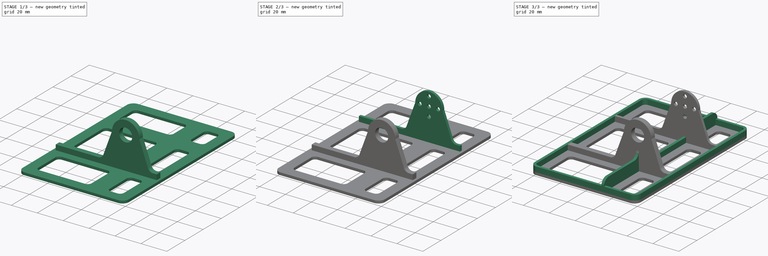
[diagram: build sequence overview — one tinted view per stage of 3, left to right]
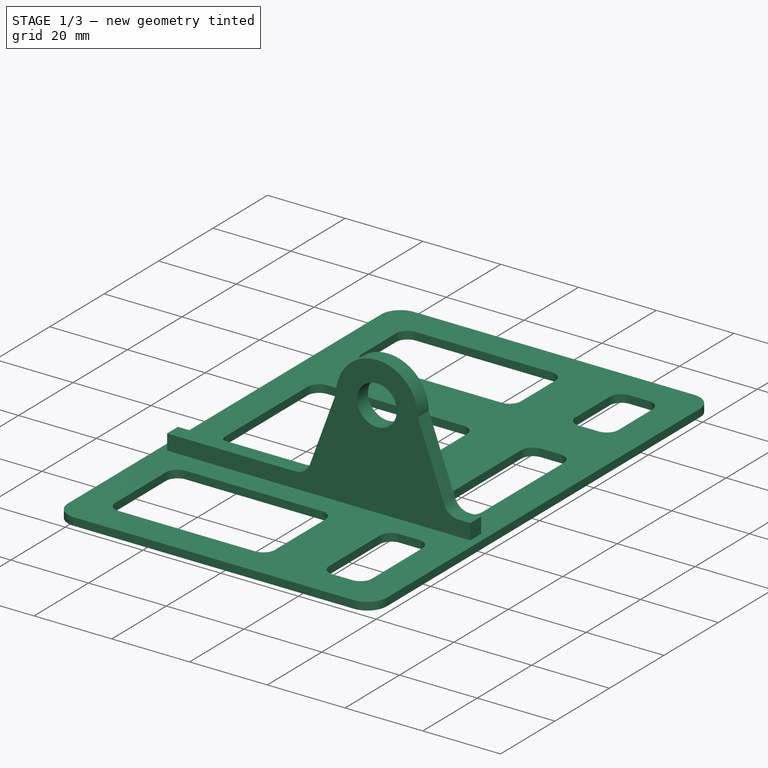
[diagram: stage 1 of 3 — iso view after this stage's code; geometry added in this stage tinted green]
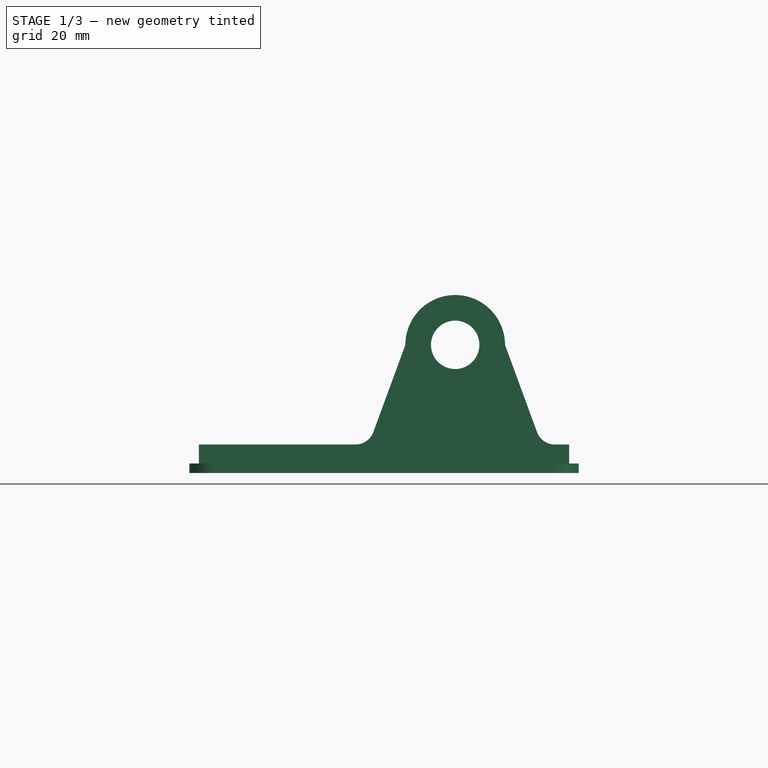
[diagram: stage 1 of 3 — front view after this stage's code; geometry added in this stage tinted green]
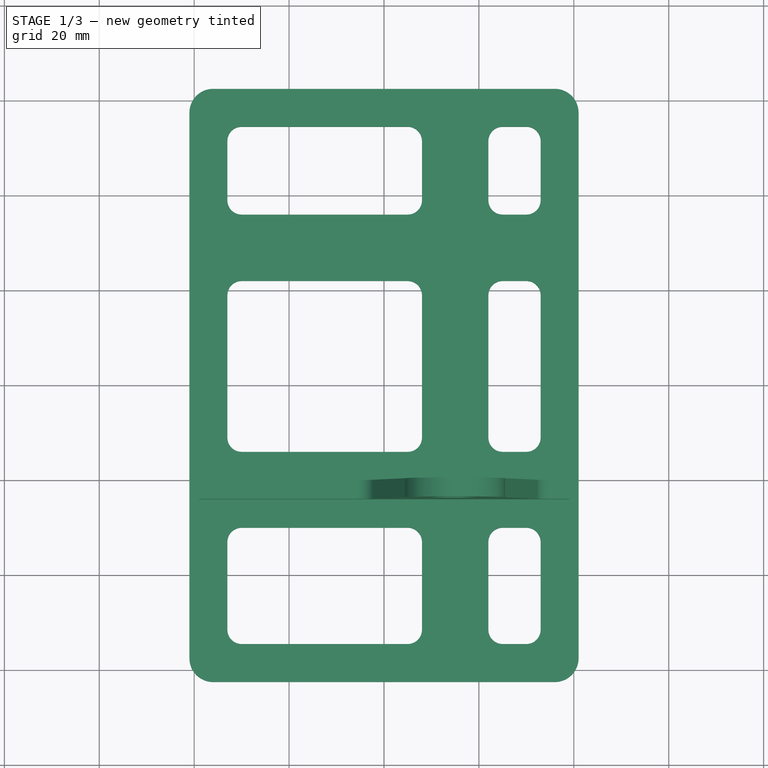
[diagram: stage 1 of 3 — top view after this stage's code; geometry added in this stage tinted green]
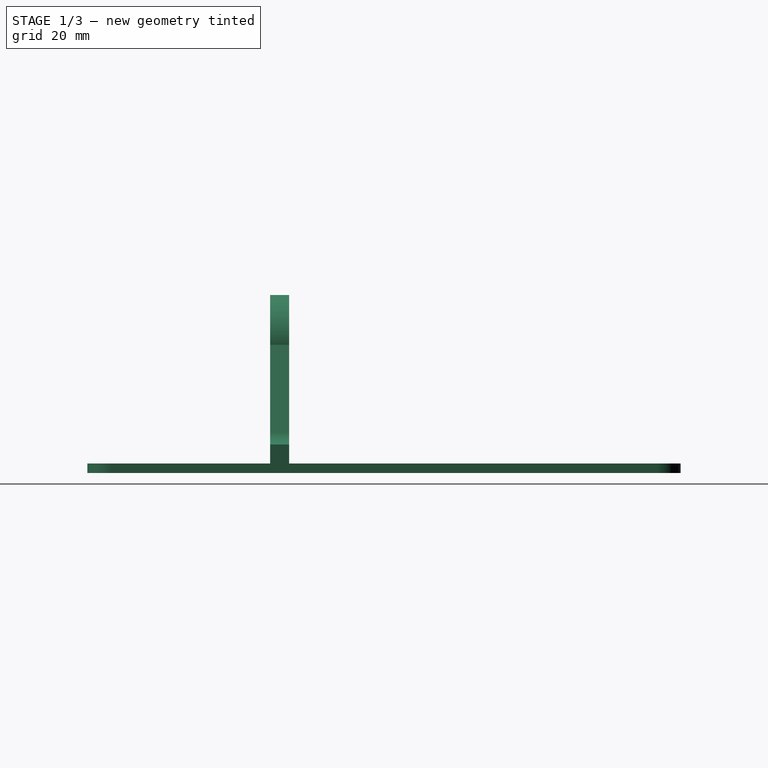
[diagram: stage 1 of 3 — right view after this stage's code; geometry added in this stage tinted green]
FCSTD DOCUMENT  (FreeCAD 0.21R33668 +26 (Git))
Label: 1R_foot_bearing2
License: All rights reserved
LicenseURL: http://en.wikipedia.org/wiki/All_rights_reserved
objects: Sketcher::SketchObject×5, PartDesign::Pad×5, PartDesign::Plane×3, Spreadsheet::Sheet×1, PartDesign::Body×1
note: 19 computed .brp shape members not serialized (recipe doc carries the construction recipe); baked Part::Feature solids carry a one-line shape summary decoded from their .brp

FEATURE [Spreadsheet::Sheet] Spreadsheet
  cells = A1='thickness; B1(thickness)=2; A2='bearing_thickness; B2(bearing_thickness)=4; A3='rim_height; B3(rim_height)=4; A4='foot_width; B4(foot_width)=82; A5='foot_length; B5(foot_length)=125; A6='foot_diameter; B6(foot_diameter)=5; A7='foot_whole_middle_length; B7(foot_whole_middle_length)=40; A8='foot_whole_back_length; B8(foot_whole_front_length)=23; A9='foot_whole_front_length; B9(foot_whole_back_length)=13; A10='foot_side_distance; B10(foot_side_distance)=6; A11='foot_frontback_distance; B11(foot_frontback_distance)=6; A13='tarsus_radius; B13(tarsus_radius)=10; A14='tarsus_width; B14(tarsus_width)=35; A15='tarsus_height; B15(tarsus_height)=35; A16='tarsus_length; B16(tarsus_length)=49; A17='tarsus_x_pos; B17(tarsus_x_pos)=7.5; A18='tarsus_front_y_pos; B18(tarsus_front_y_pos)=30; C18='c; D18==-0.5 + B1 + B16 / 2; A19='tarsus_back_y_pos; B19(tarsus_back_y_pos)=-20; C19='c; D19==-(B16 / 2) + 0.5; A21='screw_x_from_inner; B21(screw_x_from_inner)=26; C21='original; D21=33.5; E21='minus 2,5 for straight legs; F21='minus 5mm for distance between feet; A22='screw_distance; B22(screw_distance)=7; A23='screw_center_height; B23(screw_center_height)=25; A24='screw_dia; B24(screw_dia)=3; A25='axis_dia; B25(axis_dia)=7; A26='axis_dia_bearing; B26(axis_dia_bearing)=10.2; A28='hole_radius; B28(hole_radius)=3; A29='servo_disc_edge; B29(servo_disc_edge)=10; A30='servo_center_dist; B30(servo_center_dist)==sqrt(B29 * B29 * 2)
FEATURE [Sketcher::SketchObject] Sketch
  FullyConstrained = true
  MapMode = 5
  Support = -> [XY_Plane]
  expr: Constraints[153] = Spreadsheet.hole_radius
  expr: Constraints[156] = Spreadsheet.thickness + Spreadsheet.foot_side_distance
  expr: Constraints[157] = Spreadsheet.thickness + Spreadsheet.foot_side_distance
  expr: Constraints[158] = Spreadsheet.thickness + Spreadsheet.foot_side_distance
  expr: Constraints[159] = Spreadsheet.thickness + 2 * Spreadsheet.foot_frontback_distance
  expr: Constraints[160] = Spreadsheet.thickness + Spreadsheet.foot_side_distance
  expr: Constraints[162] = 2 * Spreadsheet.thickness + 2 * Spreadsheet.foot_frontback_distance
  expr: Constraints[163] = Spreadsheet.thickness + 2 * Spreadsheet.foot_frontback_distance
  expr: Constraints[164] = -Spreadsheet.tarsus_back_y_pos + Spreadsheet.foot_frontback_distance + 2 * Spreadsheet.thickness
  expr: Constraints[165] = Spreadsheet.tarsus_front_y_pos + Spreadsheet.foot_frontback_distance
  expr: Constraints[168] = Spreadsheet.screw_x_from_inner
  expr: Constraints[19] = Spreadsheet.foot_width
  expr: Constraints[20] = Spreadsheet.foot_length
  expr: Constraints[21] = Spreadsheet.foot_diameter
  sketch-geometry (72):
    g0: ArcOfCircle CenterX=-36 CenterY=57.5 CenterZ=0 NormalX=0 NormalY=0 NormalZ=1 AngleXU=0 Radius=5 StartAngle=1.5708 EndAngle=3.14159
    g1: LineSegment StartX=-36 StartY=62.5 StartZ=0 EndX=36 EndY=62.5 EndZ=0
    g2: ArcOfCircle CenterX=36 CenterY=57.5 CenterZ=0 NormalX=0 NormalY=0 NormalZ=1 AngleXU=0 Radius=5 StartAngle=0 EndAngle=1.5708
    g3: LineSegment StartX=41 StartY=57.5 StartZ=0 EndX=41 EndY=-57.5 EndZ=0
    g4: ArcOfCircle CenterX=36 CenterY=-57.5 CenterZ=0 NormalX=0 NormalY=0 NormalZ=1 AngleXU=0 Radius=5 StartAngle=4.71239 EndAngle=6.28319
    g5: LineSegment StartX=36 StartY=-62.5 StartZ=0 EndX=-36 EndY=-62.5 EndZ=0
    g6: ArcOfCircle CenterX=-36 CenterY=-57.5 CenterZ=0 NormalX=0 NormalY=0 NormalZ=1 AngleXU=0 Radius=5 StartAngle=3.14159 EndAngle=4.71239
    g7: LineSegment StartX=-41 StartY=-57.5 StartZ=0 EndX=-41 EndY=57.5 EndZ=0
    g8: GeomPoint X=-41 Y=62.5 Z=0
    g9: GeomPoint X=41 Y=-62.5 Z=0
    g10: ArcOfCircle CenterX=-30 CenterY=51.5 CenterZ=0 NormalX=0 NormalY=0 NormalZ=1 AngleXU=0 Radius=3 StartAngle=1.5708 EndAngle=3.14159
    g11: LineSegment StartX=-30 StartY=54.5 StartZ=0 EndX=5 EndY=54.5 EndZ=0
    g12: ArcOfCircle CenterX=5 CenterY=51.5 CenterZ=0 NormalX=0 NormalY=0 NormalZ=1 AngleXU=0 Radius=3 StartAngle=1.3e-15 EndAngle=1.5708
    g13: LineSegment StartX=8 StartY=51.5 StartZ=0 EndX=8 EndY=39 EndZ=0
    g14: ArcOfCircle CenterX=5 CenterY=39 CenterZ=0 NormalX=0 NormalY=0 NormalZ=1 AngleXU=0 Radius=3 StartAngle=4.71239 EndAngle=6.28319
    g15: LineSegment StartX=5 StartY=36 StartZ=0 EndX=-30 EndY=36 EndZ=0
    g16: ArcOfCircle CenterX=-30 CenterY=39 CenterZ=0 NormalX=0 NormalY=0 NormalZ=1 AngleXU=0 Radius=3 StartAngle=3.14159 EndAngle=4.71239
    g17: LineSegment StartX=-33 StartY=39 StartZ=0 EndX=-33 EndY=51.5 EndZ=0
    g18: GeomPoint X=-33 Y=54.5 Z=0
    g19: GeomPoint X=8 Y=36 Z=0
    g20: ArcOfCircle CenterX=25 CenterY=51.5 CenterZ=0 NormalX=0 NormalY=0 NormalZ=1 AngleXU=0 Radius=3 StartAngle=1.5708 EndAngle=3.14159
    g21: LineSegment StartX=25 StartY=54.5 StartZ=0 EndX=30 EndY=54.5 EndZ=0
    g22: ArcOfCircle CenterX=30 CenterY=51.5 CenterZ=0 NormalX=0 NormalY=0 NormalZ=1 AngleXU=0 Radius=3 StartAngle=0 EndAngle=1.5708
    g23: LineSegment StartX=33 StartY=51.5 StartZ=0 EndX=33 EndY=39 EndZ=0
    g24: ArcOfCircle CenterX=30 CenterY=39 CenterZ=0 NormalX=0 NormalY=0 NormalZ=1 AngleXU=0 Radius=3 StartAngle=4.71239 EndAngle=6.28319
    g25: LineSegment StartX=30 StartY=36 StartZ=0 EndX=25 EndY=36 EndZ=0
    g26: ArcOfCircle CenterX=25 CenterY=39 CenterZ=0 NormalX=0 NormalY=0 NormalZ=1 AngleXU=0 Radius=3 StartAngle=3.14159 EndAngle=4.71239
    g27: LineSegment StartX=22 StartY=39 StartZ=0 EndX=22 EndY=51.5 EndZ=0
    g28: GeomPoint X=22 Y=54.5 Z=0
    g29: GeomPoint X=33 Y=36 Z=0
    g30: ArcOfCircle CenterX=-30 CenterY=19 CenterZ=0 NormalX=0 NormalY=0 NormalZ=1 AngleXU=0 Radius=3 StartAngle=1.5708 EndAngle=3.14159
    g31: LineSegment StartX=-30 StartY=22 StartZ=0 EndX=5 EndY=22 EndZ=0
    g32: ArcOfCircle CenterX=5 CenterY=19 CenterZ=0 NormalX=0 NormalY=0 NormalZ=1 AngleXU=0 Radius=3 StartAngle=2e-16 EndAngle=1.5708
    g33: LineSegment StartX=8 StartY=19 StartZ=0 EndX=8 EndY=-11 EndZ=0
    g34: ArcOfCircle CenterX=5 CenterY=-11 CenterZ=0 NormalX=0 NormalY=0 NormalZ=1 AngleXU=0 Radius=3 StartAngle=4.71239 EndAngle=6.28319
    g35: LineSegment StartX=5 StartY=-14 StartZ=0 EndX=-30 EndY=-14 EndZ=0
    g36: ArcOfCircle CenterX=-30 CenterY=-11 CenterZ=0 NormalX=0 NormalY=0 NormalZ=1 AngleXU=0 Radius=3 StartAngle=3.14159 EndAngle=4.71239
    g37: LineSegment StartX=-33 StartY=-11 StartZ=0 EndX=-33 EndY=19 EndZ=0
    g38: GeomPoint X=-33 Y=22 Z=0
    g39: GeomPoint X=8 Y=-14 Z=0
    g40: ArcOfCircle CenterX=25 CenterY=19 CenterZ=0 NormalX=0 NormalY=0 NormalZ=1 AngleXU=0 Radius=3 StartAngle=1.5708 EndAngle=3.14159
    g41: LineSegment StartX=25 StartY=22 StartZ=0 EndX=30 EndY=22 EndZ=0
    g42: ArcOfCircle CenterX=30 CenterY=19 CenterZ=0 NormalX=0 NormalY=0 NormalZ=1 AngleXU=0 Radius=3 StartAngle=7e-16 EndAngle=1.5708
    g43: LineSegment StartX=33 StartY=19 StartZ=0 EndX=33 EndY=-11 EndZ=0
    g44: ArcOfCircle CenterX=30 CenterY=-11 CenterZ=0 NormalX=0 NormalY=0 NormalZ=1 AngleXU=0 Radius=3 StartAngle=4.71239 EndAngle=6.28319
    g45: LineSegment StartX=30 StartY=-14 StartZ=0 EndX=25 EndY=-14 EndZ=0
    g46: ArcOfCircle CenterX=25 CenterY=-11 CenterZ=0 NormalX=0 NormalY=0 NormalZ=1 AngleXU=0 Radius=3 StartAngle=3.14159 EndAngle=4.71239
    g47: LineSegment StartX=22 StartY=-11 StartZ=0 EndX=22 EndY=19 EndZ=0
    g48: GeomPoint X=22 Y=22 Z=0
    g49: GeomPoint X=33 Y=-14 Z=0
    g50: ArcOfCircle CenterX=-30 CenterY=-33 CenterZ=0 NormalX=0 NormalY=0 NormalZ=1 AngleXU=0 Radius=3 StartAngle=1.5708 EndAngle=3.14159
    g51: LineSegment StartX=-30 StartY=-30 StartZ=0 EndX=5 EndY=-30 EndZ=0
    g52: ArcOfCircle CenterX=5 CenterY=-33 CenterZ=0 NormalX=0 NormalY=0 NormalZ=1 AngleXU=0 Radius=3 StartAngle=-9e-16 EndAngle=1.5708
    g53: LineSegment StartX=8 StartY=-33 StartZ=0 EndX=8 EndY=-51.5 EndZ=0
    g54: ArcOfCircle CenterX=5 CenterY=-51.5 CenterZ=0 NormalX=0 NormalY=0 NormalZ=1 AngleXU=0 Radius=3 StartAngle=4.71239 EndAngle=6.28319
    g55: LineSegment StartX=5 StartY=-54.5 StartZ=0 EndX=-30 EndY=-54.5 EndZ=0
    g56: ArcOfCircle CenterX=-30 CenterY=-51.5 CenterZ=0 NormalX=0 NormalY=0 NormalZ=1 AngleXU=0 Radius=3 StartAngle=3.14159 EndAngle=4.71239
    g57: LineSegment StartX=-33 StartY=-51.5 StartZ=0 EndX=-33 EndY=-33 EndZ=0
    g58: GeomPoint X=-33 Y=-30 Z=0
    g59: GeomPoint X=8 Y=-54.5 Z=0
    g60: ArcOfCircle CenterX=25 CenterY=-33 CenterZ=0 NormalX=0 NormalY=0 NormalZ=1 AngleXU=0 Radius=3 StartAngle=1.5708 EndAngle=3.14159
    g61: LineSegment StartX=25 StartY=-30 StartZ=0 EndX=30 EndY=-30 EndZ=0
    g62: ArcOfCircle CenterX=30 CenterY=-33 CenterZ=0 NormalX=0 NormalY=0 NormalZ=1 AngleXU=0 Radius=3 StartAngle=-9e-16 EndAngle=1.5708
    g63: LineSegment StartX=33 StartY=-33 StartZ=0 EndX=33 EndY=-51.5 EndZ=0
    g64: ArcOfCircle CenterX=30 CenterY=-51.5 CenterZ=0 NormalX=0 NormalY=0 NormalZ=1 AngleXU=0 Radius=3 StartAngle=4.71239 EndAngle=6.28319
    g65: LineSegment StartX=30 StartY=-54.5 StartZ=0 EndX=25 EndY=-54.5 EndZ=0
    g66: ArcOfCircle CenterX=25 CenterY=-51.5 CenterZ=0 NormalX=0 NormalY=0 NormalZ=1 AngleXU=0 Radius=3 StartAngle=3.14159 EndAngle=4.71239
    g67: LineSegment StartX=22 StartY=-51.5 StartZ=0 EndX=22 EndY=-33 EndZ=0
    g68: GeomPoint X=22 Y=-30 Z=0
    g69: GeomPoint X=33 Y=-54.5 Z=0
    g70: GeomPoint X=15 Y=29 Z=0
    g71: GeomPoint X=15 Y=-22 Z=0
  constraints (169):
    c: Tangent(g0,g1) = 1.5708
    c: Tangent(g1,g2) = 1.5708
    c: Tangent(g2,g3) = 1.5708
    c: Tangent(g3,g4) = 1.5708
    c: Tangent(g4,g5) = 1.5708
    c: Tangent(g5,g6) = 1.5708
    c: Tangent(g6,g7) = 1.5708
    c: Tangent(g7,g0) = 1.5708
    c: Horizontal(g1)
    c: Horizontal(g5)
    c: Vertical(g3)
    c: Vertical(g7)
    c: Equal(g0,g2)
    c: Equal(g2,g4)
    c: Equal(g4,g6)
    c: PointOnObject(g8,g1)
    c: PointOnObject(g8,g7)
    c: PointOnObject(g9,g3)
    c: PointOnObject(g9,g5)
    c: DistanceX(g0,g2) = 82
    c: DistanceY(g4,g1) = 125
    c: DistanceX(g2,g2) = 5
    c: Symmetric(g2,g6,g-1)
    c: Tangent(g10,g11) = 1.5708
    c: Tangent(g11,g12) = 1.5708
    c: Tangent(g12,g13) = 1.5708
    c: Tangent(g13,g14) = 1.5708
    c: Tangent(g14,g15) = 1.5708
    c: Tangent(g15,g16) = 1.5708
    c: Tangent(g16,g17) = 1.5708
    c: Tangent(g17,g10) = 1.5708
    c: Horizontal(g11)
    c: Horizontal(g15)
    c: Vertical(g13)
    c: Vertical(g17)
    c: Equal(g10,g12)
    c: Equal(g12,g14)
    c: Equal(g14,g16)
    c: PointOnObject(g18,g11)
    c: PointOnObject(g18,g17)
    c: PointOnObject(g19,g13)
    c: PointOnObject(g19,g15)
    c: Tangent(g20,g21) = 1.5708
    c: Tangent(g21,g22) = 1.5708
    c: Tangent(g22,g23) = 1.5708
    c: Tangent(g23,g24) = 1.5708
    c: Tangent(g24,g25) = 1.5708
    c: Tangent(g25,g26) = 1.5708
    c: Tangent(g26,g27) = 1.5708
    c: Tangent(g27,g20) = 1.5708
    c: Horizontal(g21)
    c: Horizontal(g25)
    c: Vertical(g23)
    c: Vertical(g27)
    c: Equal(g20,g22)
    c: Equal(g22,g24)
    c: Equal(g24,g26)
    c: PointOnObject(g28,g21)
    c: PointOnObject(g28,g27)
    c: PointOnObject(g29,g23)
    c: PointOnObject(g29,g25)
    c: Tangent(g30,g31) = 1.5708
    c: Tangent(g31,g32) = 1.5708
    c: Tangent(g32,g33) = 1.5708
    c: Tangent(g33,g34) = 1.5708
    c: Tangent(g34,g35) = 1.5708
    c: Tangent(g35,g36) = 1.5708
    c: Tangent(g36,g37) = 1.5708
    c: Tangent(g37,g30) = 1.5708
    c: Horizontal(g31)
    c: Horizontal(g35)
    c: Vertical(g33)
    c: Vertical(g37)
    c: Equal(g30,g32)
    c: Equal(g32,g34)
    c: Equal(g34,g36)
    c: PointOnObject(g38,g31)
    c: PointOnObject(g38,g37)
    c: PointOnObject(g39,g33)
    c: PointOnObject(g39,g35)
    c: Tangent(g40,g41) = 1.5708
    c: Tangent(g41,g42) = 1.5708
    c: Tangent(g42,g43) = 1.5708
    c: Tangent(g43,g44) = 1.5708
    c: Tangent(g44,g45) = 1.5708
    c: Tangent(g45,g46) = 1.5708
    c: Tangent(g46,g47) = 1.5708
    c: Tangent(g47,g40) = 1.5708
    c: Horizontal(g41)
    c: Horizontal(g45)
    c: Vertical(g43)
    c: Vertical(g47)
    c: Equal(g40,g42)
    c: Equal(g42,g44)
    c: Equal(g44,g46)
    c: PointOnObject(g48,g41)
    c: PointOnObject(g48,g47)
    c: PointOnObject(g49,g43)
    c: PointOnObject(g49,g45)
    c: Tangent(g50,g51) = 1.5708
    c: Tangent(g51,g52) = 1.5708
    c: Tangent(g52,g53) = 1.5708
    c: Tangent(g53,g54) = 1.5708
    c: Tangent(g54,g55) = 1.5708
    c: Tangent(g55,g56) = 1.5708
    c: Tangent(g56,g57) = 1.5708
    c: Tangent(g57,g50) = 1.5708
    c: Horizontal(g51)
    c: Horizontal(g55)
    c: Vertical(g53)
    c: Vertical(g57)
    c: Equal(g50,g52)
    c: Equal(g52,g54)
    c: Equal(g54,g56)
    c: PointOnObject(g58,g51)
    c: PointOnObject(g58,g57)
    c: PointOnObject(g59,g53)
    c: PointOnObject(g59,g55)
    c: Tangent(g60,g61) = 1.5708
    c: Tangent(g61,g62) = 1.5708
    c: Tangent(g62,g63) = 1.5708
    c: Tangent(g63,g64) = 1.5708
    c: Tangent(g64,g65) = 1.5708
    c: Tangent(g65,g66) = 1.5708
    c: Tangent(g66,g67) = 1.5708
    c: Tangent(g67,g60) = 1.5708
    c: Horizontal(g61)
    c: Horizontal(g65)
    c: Vertical(g63)
    c: Vertical(g67)
    c: Equal(g60,g62)
    c: Equal(g62,g64)
    c: Equal(g64,g66)
    c: PointOnObject(g68,g61)
    c: PointOnObject(g68,g67)
    c: PointOnObject(g69,g63)
    c: PointOnObject(g69,g65)
    c: Vertical(g16,g30)
    c: Vertical(g36,g50)
    c: Vertical(g52,g33)
    c: Vertical(g32,g13)
    c: Horizontal(g31,g40)
    c: Horizontal(g34,g45)
    c: Horizontal(g51,g60)
    c: Horizontal(g54,g65)
    c: Horizontal(g60,g52)
    c: Horizontal(g40,g32)
    c: Horizontal(g20,g12)
    c: Horizontal(g14,g25)
    c: Horizontal(g13,g26)
    c: Vertical(g60,g46)
    c: Vertical(g42,g23)
    c: Vertical(g62,g43)
    c: Radius(g16) = 3
    c: Equal(g16,g30)
    c: Equal(g30,g50)
    c: DistanceX(g0,g10) = 8
    c: DistanceY(g10,g0) = 8
    c: DistanceX(g22,g2) = 8
    c: DistanceX(g12,g20) = 14
    c: DistanceY(g5,g55) = 8
    c: Vertical(g26,g40)
    c: DistanceY(g51,g34) = 16
    c: DistanceY(g31,g14) = 14
    c: DistanceY(g50,g-1) = 30
    c: DistanceY(g-1,g15) = 36
    c: Symmetric(g46,g52,g71)
    c: Symmetric(g26,g32,g70)
    c: DistanceX(g71,g3) = 26
FEATURE [PartDesign::Pad] Pad
  Direction = (0,0,1)
  Length = 2
  Length2 = 10
  Profile = -> Sketch
  ReferenceAxis = -> Sketch [N_Axis]
  Type = 0
  expr: Length = Spreadsheet.thickness
FEATURE [PartDesign::Plane] DatumPlane  label="frontDatumPlane"
  AttachmentOffset = pos=(0,0,-6) rot=(0,0,1;0rad)
  Length = 96.309
  MapMode = 5
  Placement = pos=(0,28,-1.3e-15) rot=(1,0,0;1.5708rad)
  ResizeMode = 0
  Support = -> [Pad]
  Width = 76.7325
  expr: .AttachmentOffset.Base.z = -Spreadsheet.foot_frontback_distance
FEATURE [PartDesign::Plane] DatumPlane001  label="backDatumPlane"
  AttachmentOffset = pos=(0,0,-6) rot=(0,0,1;0rad)
  Length = 96.309
  MapMode = 5
  Placement = pos=(0,-24,-1.3e-15) rot=(1,0,0;1.5708rad)
  ResizeMode = 0
  Support = -> [Pad]
  Width = 76.7325
  expr: .AttachmentOffset.Base.z = -Spreadsheet.foot_frontback_distance
FEATURE [Sketcher::SketchObject] Sketch001
  ExternalGeometry = -> [Pad]
  FullyConstrained = true
  MapMode = 5
  Placement = pos=(0,-24,-1.3e-15) rot=(1,0,0;1.5708rad)
  Support = -> [DatumPlane001]
  expr: Constraints[11] = Spreadsheet.screw_center_height
  expr: Constraints[12] = Spreadsheet.screw_distance + Spreadsheet.thickness + Spreadsheet.screw_dia / 2
  expr: Constraints[17] = Spreadsheet.thickness
  expr: Constraints[19] = Spreadsheet.thickness
  expr: Constraints[28] = Spreadsheet.rim_height
  expr: Constraints[29] = 2 * (Spreadsheet.screw_distance + Spreadsheet.thickness + Spreadsheet.screw_dia / 2)
  expr: Constraints[30] = Spreadsheet.rim_height
  expr: Constraints[32] = Spreadsheet.axis_dia_bearing
  sketch-geometry (13):
    g0: LineSegment StartX=39 StartY=2 StartZ=0 EndX=39 EndY=6 EndZ=0
    g1: LineSegment StartX=39 StartY=6 StartZ=0 EndX=36 EndY=6 EndZ=0
    g2: LineSegment StartX=32.2449 StartY=8.62185 StartZ=0 EndX=25.5 EndY=27 EndZ=0
    g3: LineSegment StartX=4.5 StartY=27 StartZ=0 EndX=-2.24491 EndY=8.62185 EndZ=0
    g4: LineSegment StartX=-6 StartY=6 StartZ=0 EndX=-39 EndY=6 EndZ=0
    g5: ArcOfCircle CenterX=15 CenterY=27 CenterZ=0 NormalX=0 NormalY=0 NormalZ=1 AngleXU=0 Radius=10.5 StartAngle=0 EndAngle=3.14159
    g6: GeomPoint X=15 Y=2 Z=0
    g7: GeomPoint X=15 Y=6 Z=0
    g8: LineSegment StartX=-39 StartY=6 StartZ=0 EndX=-39 EndY=2 EndZ=0
    g9: LineSegment StartX=-39 StartY=2 StartZ=0 EndX=39 EndY=2 EndZ=0
    g10: ArcOfCircle CenterX=-6 CenterY=10 CenterZ=0 NormalX=0 NormalY=0 NormalZ=1 AngleXU=0 Radius=4 StartAngle=4.71239 EndAngle=5.93144
    g11: ArcOfCircle CenterX=36 CenterY=10 CenterZ=0 NormalX=0 NormalY=0 NormalZ=1 AngleXU=0 Radius=4 StartAngle=3.49334 EndAngle=4.71239
    g12: Circle CenterX=15 CenterY=27 CenterZ=0 NormalX=0 NormalY=0 NormalZ=1 AngleXU=0 Radius=5.1
  constraints (33):
    c: Vertical(g0)
    c: Coincident(g1,g0)
    c: Horizontal(g1)
    c: Horizontal(g4)
    c: Coincident(g5,g3)
    c: Coincident(g5,g2)
    c: Horizontal(g3,g2)
    c: Horizontal(g5,g2)
    c: Symmetric(g-5,g-6,g6)
    c: Vertical(g6,g5)
    c: Horizontal(g4,g0)
    c: DistanceY(g6,g5) = 25
    c: DistanceX(g5,g2) = 10.5
    c: Vertical(g7,g5)
    c: Coincident(g8,g4)
    c: Vertical(g8)
    c: Horizontal(g8,g-4)
    c: DistanceX(g-4,g8) = 2
    c: Horizontal(g0,g-3)
    c: DistanceX(g0,g-3) = 2
    c: Coincident(g9,g8)
    c: Coincident(g9,g0)
    c: Tangent(g3,g10) = 1.5708
    c: Tangent(g4,g10) = 1.5708
    c: Tangent(g2,g11) = 1.5708
    c: Tangent(g1,g11) = 1.5708
    c: Horizontal(g11,g10)
    c: Symmetric(g1,g4,g7)
    c: DistanceY(g0,g0) = 4
    c: DistanceX(g7,g1) = 21
    c: DistanceY(g4,g10) = 4
    c: Coincident(g12,g5)
    c: Diameter(g12) = 10.2
FEATURE [PartDesign::Pad] Pad001
  BaseFeature = -> Pad
  Direction = (0,-1,2e-16)
  Length = 4
  Length2 = 10
  Profile = -> Sketch001
  ReferenceAxis = -> Sketch001 [N_Axis]
  Reversed = true
  Type = 0
  expr: Length = Spreadsheet.bearing_thickness
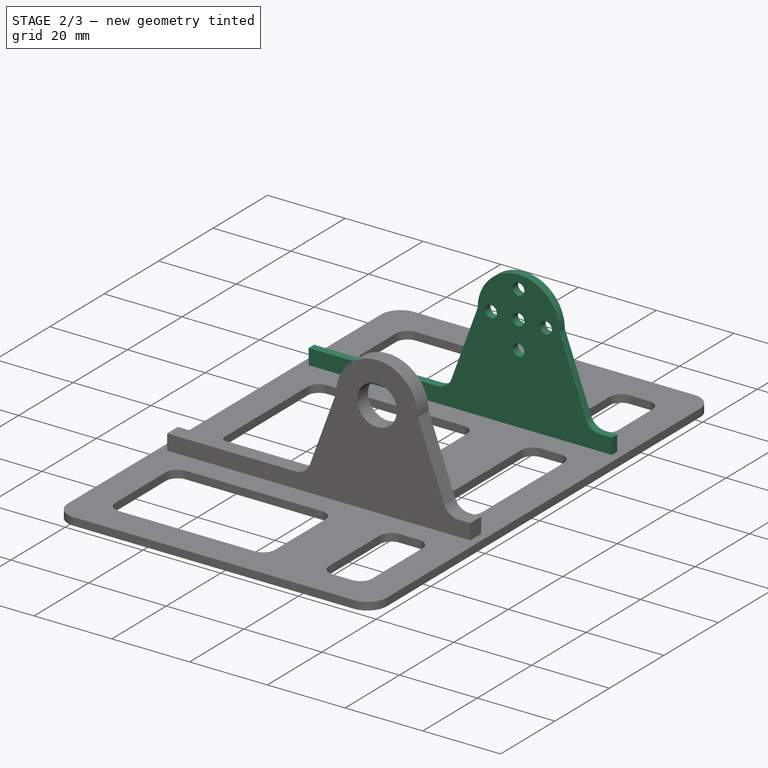
[diagram: stage 2 of 3 — iso view after this stage's code; geometry added in this stage tinted green]
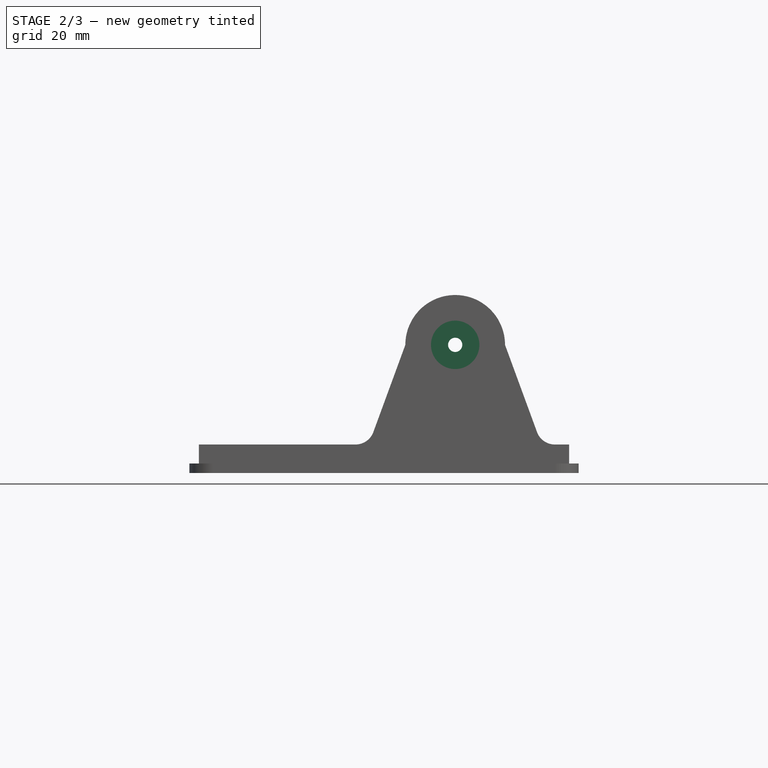
[diagram: stage 2 of 3 — front view after this stage's code; geometry added in this stage tinted green]
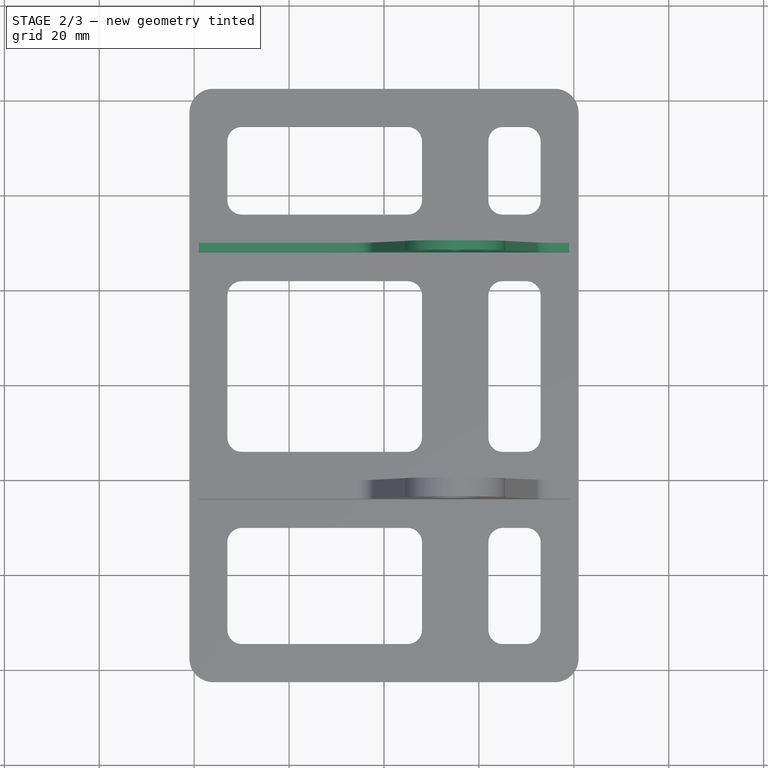
[diagram: stage 2 of 3 — top view after this stage's code; geometry added in this stage tinted green]
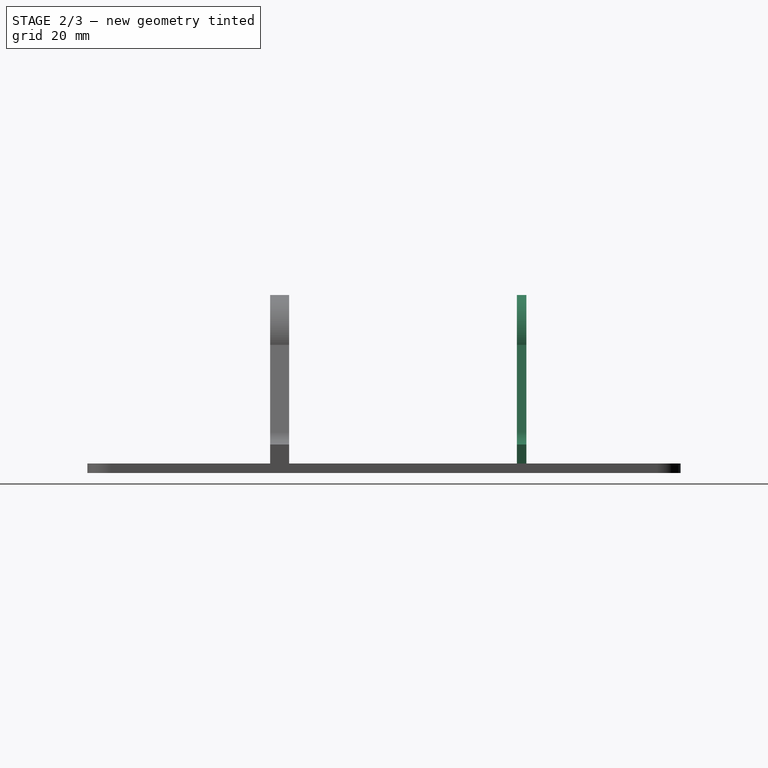
[diagram: stage 2 of 3 — right view after this stage's code; geometry added in this stage tinted green]
FEATURE [Sketcher::SketchObject] Sketch002
  ExternalGeometry = -> [Pad001]
  FullyConstrained = true
  MapMode = 5
  Placement = pos=(0,28,-1.3e-15) rot=(1,0,0;1.5708rad)
  Support = -> [DatumPlane]
  expr: Constraints[26] = Spreadsheet.servo_disc_edge
  expr: Constraints[27] = Spreadsheet.servo_center_dist / 2
  expr: Constraints[32] = Spreadsheet.screw_dia
  sketch-geometry (15):
    g0: LineSegment StartX=-39 StartY=2 StartZ=0 EndX=39 EndY=2 EndZ=0
    g1: LineSegment StartX=39 StartY=2 StartZ=0 EndX=39 EndY=6 EndZ=0
    g2: LineSegment StartX=-39 StartY=2 StartZ=0 EndX=-39 EndY=6 EndZ=0
    g3: LineSegment StartX=-39 StartY=6 StartZ=0 EndX=-6 EndY=6 EndZ=0
    g4: LineSegment StartX=-2.24491 StartY=8.62185 StartZ=0 EndX=4.5 EndY=27 EndZ=0
    g5: LineSegment StartX=25.5 StartY=27 StartZ=0 EndX=32.2449 EndY=8.62185 EndZ=0
    g6: ArcOfCircle CenterX=-6 CenterY=10 CenterZ=0 NormalX=0 NormalY=0 NormalZ=1 AngleXU=0 Radius=4 StartAngle=4.71239 EndAngle=5.93144
    g7: ArcOfCircle CenterX=36 CenterY=10 CenterZ=0 NormalX=0 NormalY=0 NormalZ=1 AngleXU=0 Radius=4 StartAngle=3.49334 EndAngle=4.71239
    g8: ArcOfCircle CenterX=15 CenterY=27 CenterZ=0 NormalX=0 NormalY=0 NormalZ=1 AngleXU=0 Radius=10.5 StartAngle=0 EndAngle=3.14159
    g9: Circle CenterX=7.92893 CenterY=27 CenterZ=0 NormalX=0 NormalY=0 NormalZ=1 AngleXU=0 Radius=1.5
    g10: Circle CenterX=15 CenterY=34.0711 CenterZ=0 NormalX=0 NormalY=0 NormalZ=1 AngleXU=0 Radius=1.5
    g11: Circle CenterX=15 CenterY=27 CenterZ=0 NormalX=0 NormalY=0 NormalZ=1 AngleXU=0 Radius=1.5
    g12: Circle CenterX=22.0711 CenterY=27 CenterZ=0 NormalX=0 NormalY=0 NormalZ=1 AngleXU=0 Radius=1.5
    g13: Circle CenterX=15 CenterY=19.9289 CenterZ=0 NormalX=0 NormalY=0 NormalZ=1 AngleXU=0 Radius=1.5
    g14: LineSegment StartX=36 StartY=6 StartZ=0 EndX=39 EndY=6 EndZ=0
  constraints (35):
    c: Coincident(g0,g-13)
    c: Coincident(g0,g-12)
    c: Coincident(g1,g0)
    c: Coincident(g1,g-12)
    c: Coincident(g2,g-14)
    c: Coincident(g3,g2)
    c: Coincident(g3,g-14)
    c: Coincident(g4,g-7)
    c: Coincident(g4,g-8)
    c: Coincident(g5,g-9)
    c: Coincident(g5,g-10)
    c: Coincident(g2,g0)
    c: Coincident(g6,g4)
    c: Coincident(g6,g3)
    c: Coincident(g7,g-11)
    c: Coincident(g7,g5)
    c: Coincident(g8,g5)
    c: Coincident(g8,g4)
    c: Horizontal(g-6,g6)
    c: Horizontal(g-10,g7)
    c: Coincident(g11,g8)
    c: Symmetric(g13,g10,g8)
    c: Symmetric(g9,g12,g8)
    c: Horizontal(g8,g-8)
    c: Horizontal(g9,g8)
    c: Vertical(g10,g8)
    c: Distance(g10,g12) = 10
    c: DistanceX(g8,g12) = 7.07107
    c: Equal(g13,g12)
    c: Equal(g13,g11)
    c: Equal(g13,g10)
    c: Equal(g13,g9)
    c: Diameter(g13) = 3
    c: Coincident(g14,g7)
    c: Coincident(g14,g1)
FEATURE [PartDesign::Plane] DatumPlane002  label="sideDatumPlane"
  AttachmentOffset = pos=(0,0,0) rot=(1,0,0;1.5708rad)
  Length = 80.0903
  MapMode = 11
  Placement = pos=(15,-24,26) rot=(0.707107,0,0.707107;3.14159rad)
  ResizeMode = 0
  Width = 142.667
FEATURE [PartDesign::Pad] Pad002
  BaseFeature = -> Pad001
  Direction = (0,-1,2e-16)
  Length = 2
  Length2 = 10
  Profile = -> Sketch002
  ReferenceAxis = -> Sketch002 [N_Axis]
  Reversed = true
  Type = 0
  expr: Length = Spreadsheet.thickness
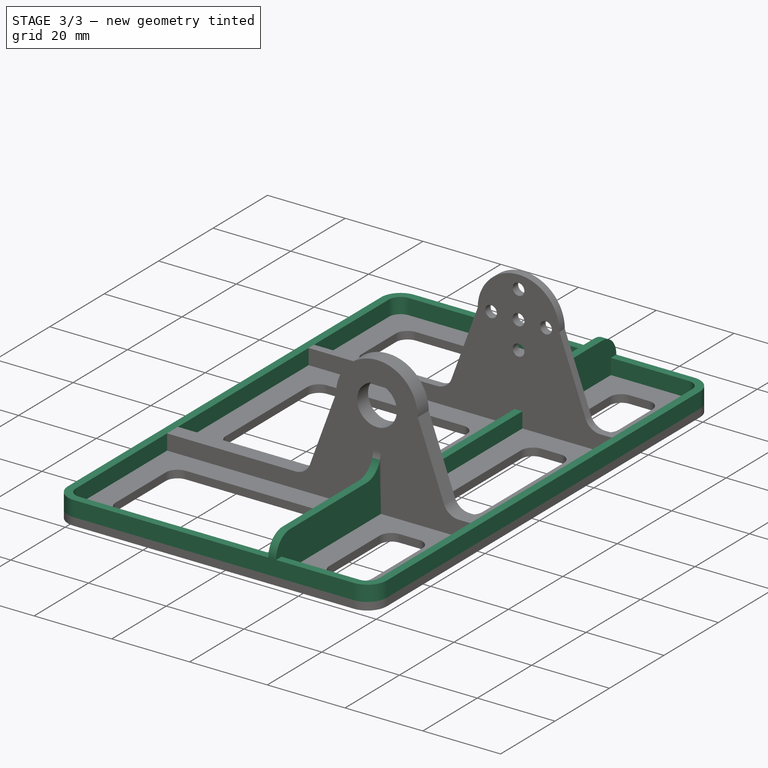
[diagram: stage 3 of 3 — iso view after this stage's code; geometry added in this stage tinted green]
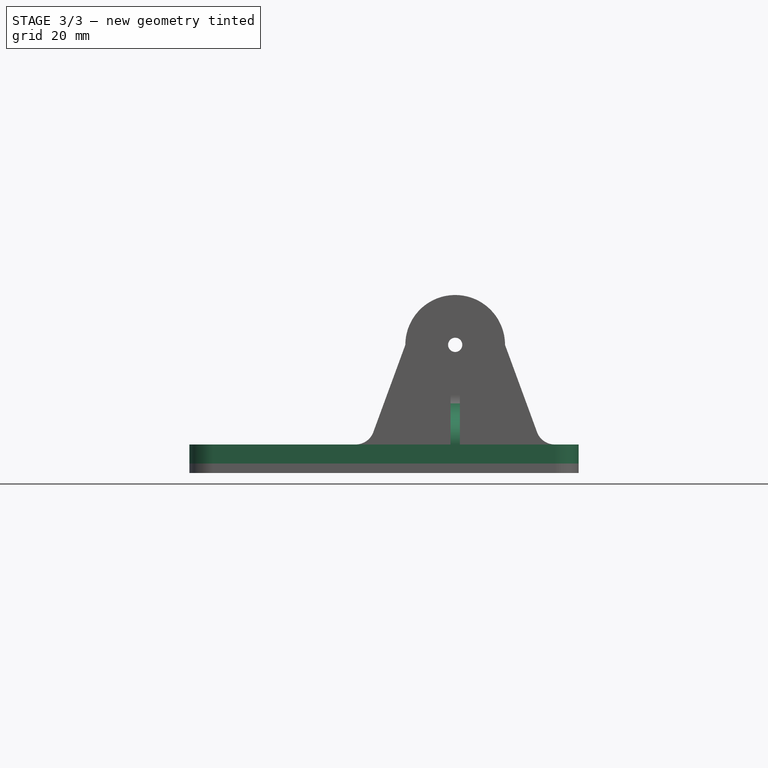
[diagram: stage 3 of 3 — front view after this stage's code; geometry added in this stage tinted green]
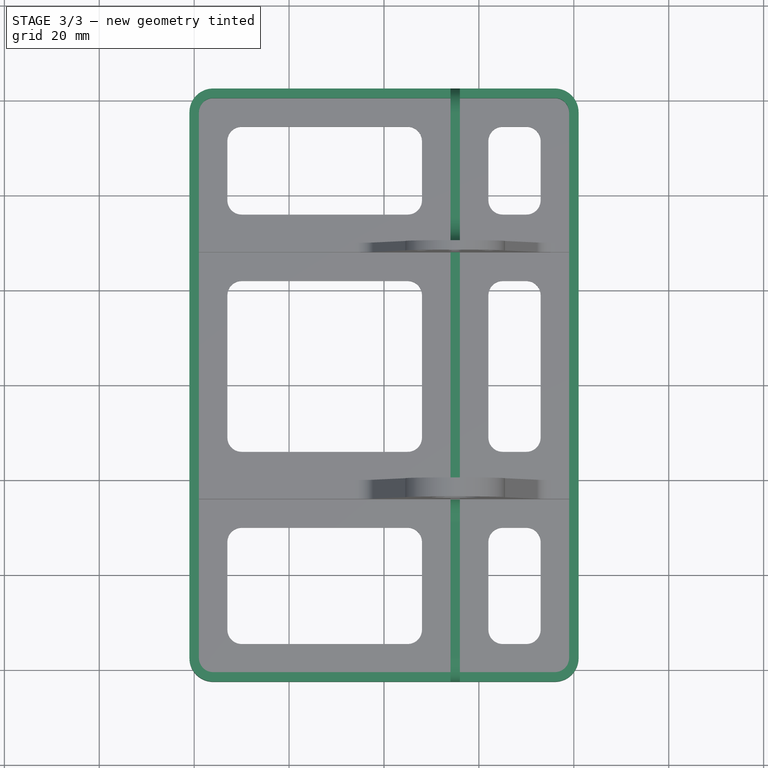
[diagram: stage 3 of 3 — top view after this stage's code; geometry added in this stage tinted green]
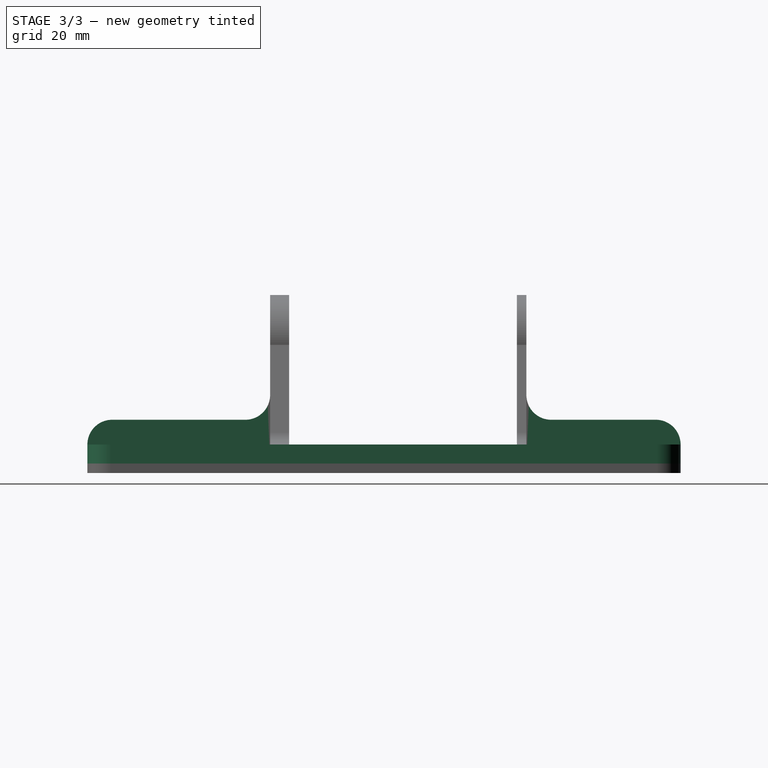
[diagram: stage 3 of 3 — right view after this stage's code; geometry added in this stage tinted green]
FEATURE [Sketcher::SketchObject] Sketch003
  ExternalGeometry = -> [Pad002]
  FullyConstrained = true
  MapMode = 5
  Placement = pos=(15,-24,26) rot=(0.707107,0,0.707107;3.14159rad)
  Support = -> [DatumPlane002]
  expr: Constraints[43] = Spreadsheet.rim_height
  expr: Constraints[4] = Spreadsheet.thickness
  sketch-geometry (16):
    g0: LineSegment StartX=-24 StartY=-54 StartZ=0 EndX=-24 EndY=-86.5 EndZ=0
    g1: LineSegment StartX=-24 StartY=-54 StartZ=0 EndX=-9.57107 EndY=-54 EndZ=0
    g2: LineSegment StartX=-24 StartY=38.5 StartZ=0 EndX=-24 EndY=0 EndZ=0
    g3: LineSegment StartX=-24 StartY=0 StartZ=0 EndX=-9.57107 EndY=0 EndZ=0
    g4: LineSegment StartX=-24 StartY=38.5 StartZ=0 EndX=-20 EndY=38.5 EndZ=0
    g5: ArcOfCircle CenterX=-20 CenterY=33.2855 CenterZ=0 NormalX=0 NormalY=0 NormalZ=1 AngleXU=0 Radius=5.21447 StartAngle=3e-16 EndAngle=1.5708
    g6: LineSegment StartX=-24 StartY=-86.5 StartZ=0 EndX=-20 EndY=-86.5 EndZ=0
    g7: ArcOfCircle CenterX=-20 CenterY=-81.2855 CenterZ=0 NormalX=0 NormalY=0 NormalZ=1 AngleXU=0 Radius=5.21447 StartAngle=4.71239 EndAngle=6.28319
    g8: LineSegment StartX=-24 StartY=-52 StartZ=0 EndX=-20 EndY=-52 EndZ=0
    g9: LineSegment StartX=-20 StartY=-52 StartZ=0 EndX=-20 EndY=-4 EndZ=0
    g10: LineSegment StartX=-20 StartY=-4 StartZ=0 EndX=-24 EndY=-4 EndZ=0
    g11: LineSegment StartX=-24 StartY=-4 StartZ=0 EndX=-24 EndY=-52 EndZ=0
    g12: ArcOfCircle CenterX=-9.57107 CenterY=5.21447 CenterZ=0 NormalX=0 NormalY=0 NormalZ=1 AngleXU=0 Radius=5.21447 StartAngle=3.14159 EndAngle=4.71239
    g13: LineSegment StartX=-14.7855 StartY=33.2855 StartZ=0 EndX=-14.7855 EndY=5.21447 EndZ=0
    g14: ArcOfCircle CenterX=-9.57107 CenterY=-59.2145 CenterZ=0 NormalX=0 NormalY=0 NormalZ=1 AngleXU=0 Radius=5.21447 StartAngle=1.5708 EndAngle=3.14159
    g15: LineSegment StartX=-14.7855 StartY=-59.2145 StartZ=0 EndX=-14.7855 EndY=-81.2855 EndZ=0
  constraints (47):
    c: Coincident(g0,g-12)
    c: Coincident(g1,g0)
    c: Horizontal(g1)
    c: Coincident(g0,g-11)
    c: DistanceX(g1,g-13) = 2
    c: Coincident(g2,g-3)
    c: Vertical(g2)
    c: Coincident(g3,g2)
    c: PointOnObject(g3,g-1)
    c: Horizontal(g3)
    c: Coincident(g4,g2)
    c: Horizontal(g4)
    c: Coincident(g5,g4)
    c: Vertical(g5,g4)
    c: Horizontal(g5,g5)
    c: Coincident(g6,g0)
    c: Horizontal(g6)
    c: Coincident(g7,g6)
    c: Horizontal(g7,g7)
    c: Vertical(g7,g6)
    c: Coincident(g8,g9)
    c: Coincident(g9,g10)
    c: Coincident(g10,g11)
    c: Coincident(g11,g8)
    c: Horizontal(g8)
    c: Horizontal(g10)
    c: Vertical(g9)
    c: Vertical(g11)
    c: Coincident(g8,g-8)
    c: Coincident(g9,g-14)
    c: Coincident(g12,g3)
    c: Coincident(g13,g5)
    c: Coincident(g13,g12)
    c: Vertical(g13)
    c: Vertical(g3,g12)
    c: Equal(g12,g5)
    c: Coincident(g14,g1)
    c: Coincident(g15,g7)
    c: Vertical(g15)
    c: Vertical(g14,g1)
    c: Horizontal(g14,g14)
    c: Coincident(g14,g15)
    c: Equal(g7,g14)
    c: DistanceX(g6,g6) = 4
    c: Vertical(g4,g6)
    c: Vertical(g1,g3)
    c: Horizontal(g12,g12)
FEATURE [PartDesign::Pad] Pad003
  BaseFeature = -> Pad002
  Direction = (1,-1e-16,2e-16)
  Length = 2
  Length2 = 10
  Midplane = true
  Profile = -> Sketch003
  ReferenceAxis = -> Sketch003 [N_Axis]
  Type = 0
  expr: Length = Spreadsheet.thickness
FEATURE [Sketcher::SketchObject] Sketch004
  ExternalGeometry = -> [Pad003]
  FullyConstrained = true
  MapMode = 5
  Placement = pos=(0,0,2) rot=(0,0,1;0rad)
  Support = -> [Pad003]
  sketch-geometry (24):
    g0: LineSegment StartX=-41 StartY=-57.5 StartZ=0 EndX=-41 EndY=57.5 EndZ=0
    g1: LineSegment StartX=-36 StartY=62.5 StartZ=0 EndX=14 EndY=62.5 EndZ=0
    g2: LineSegment StartX=16 StartY=62.5 StartZ=0 EndX=36 EndY=62.5 EndZ=0
    g3: LineSegment StartX=-36 StartY=-62.5 StartZ=0 EndX=14 EndY=-62.5 EndZ=0
    g4: LineSegment StartX=16 StartY=-62.5 StartZ=0 EndX=36 EndY=-62.5 EndZ=0
    g5: LineSegment StartX=41 StartY=-57.5 StartZ=0 EndX=41 EndY=57.5 EndZ=0
    g6: ArcOfCircle CenterX=36 CenterY=57.5 CenterZ=0 NormalX=0 NormalY=0 NormalZ=1 AngleXU=0 Radius=5 StartAngle=9e-16 EndAngle=1.5708
    g7: ArcOfCircle CenterX=-36 CenterY=57.5 CenterZ=0 NormalX=0 NormalY=0 NormalZ=1 AngleXU=0 Radius=5 StartAngle=1.5708 EndAngle=3.14159
    g8: ArcOfCircle CenterX=-36 CenterY=-57.5 CenterZ=0 NormalX=0 NormalY=0 NormalZ=1 AngleXU=0 Radius=5 StartAngle=3.14159 EndAngle=4.71239
    g9: ArcOfCircle CenterX=36 CenterY=-57.5 CenterZ=0 NormalX=0 NormalY=0 NormalZ=1 AngleXU=0 Radius=5 StartAngle=4.71239 EndAngle=6.28319
    g10: LineSegment StartX=39 StartY=57.5 StartZ=0 EndX=39 EndY=-57.5 EndZ=0
    g11: LineSegment StartX=16 StartY=-60.5 StartZ=0 EndX=36 EndY=-60.5 EndZ=0
    g12: ArcOfCircle CenterX=36 CenterY=-57.5 CenterZ=0 NormalX=0 NormalY=0 NormalZ=1 AngleXU=0 Radius=3 StartAngle=4.71239 EndAngle=6.28319
    g13: ArcOfCircle CenterX=36 CenterY=57.5 CenterZ=0 NormalX=0 NormalY=0 NormalZ=1 AngleXU=0 Radius=3 StartAngle=9e-16 EndAngle=1.5708
    g14: LineSegment StartX=36 StartY=60.5 StartZ=0 EndX=16 EndY=60.5 EndZ=0
    g15: LineSegment StartX=16 StartY=60.5 StartZ=0 EndX=16 EndY=62.5 EndZ=0
    g16: LineSegment StartX=16 StartY=-60.5 StartZ=0 EndX=16 EndY=-62.5 EndZ=0
    g17: LineSegment StartX=14 StartY=60.5 StartZ=0 EndX=-36 EndY=60.5 EndZ=0
    g18: LineSegment StartX=-39 StartY=57.5 StartZ=0 EndX=-39 EndY=-57.5 EndZ=0
    g19: LineSegment StartX=14 StartY=60.5 StartZ=0 EndX=14 EndY=62.5 EndZ=0
    g20: LineSegment StartX=14 StartY=-60.5 StartZ=0 EndX=-36 EndY=-60.5 EndZ=0
    g21: LineSegment StartX=14 StartY=-62.5 StartZ=0 EndX=14 EndY=-60.5 EndZ=0
    g22: ArcOfCircle CenterX=-36 CenterY=-57.5 CenterZ=0 NormalX=0 NormalY=0 NormalZ=1 AngleXU=0 Radius=3 StartAngle=3.14159 EndAngle=4.71239
    g23: ArcOfCircle CenterX=-36 CenterY=57.5 CenterZ=0 NormalX=0 NormalY=0 NormalZ=1 AngleXU=0 Radius=3 StartAngle=1.5708 EndAngle=3.14159
  constraints (67):
    c: Coincident(g0,g-12)
    c: Coincident(g0,g-8)
    c: Coincident(g1,g-7)
    c: Coincident(g1,g-6)
    c: Coincident(g2,g-3)
    c: Coincident(g2,g-4)
    c: Coincident(g3,g-12)
    c: Coincident(g3,g-11)
    c: Coincident(g4,g-10)
    c: Coincident(g4,g-10)
    c: Coincident(g5,g-9)
    c: Coincident(g5,g-5)
    c: Coincident(g6,g2)
    c: Coincident(g6,g5)
    c: Coincident(g7,g1)
    c: Coincident(g7,g0)
    c: Vertical(g7,g-7)
    c: Coincident(g8,g0)
    c: Coincident(g8,g3)
    c: Coincident(g9,g5)
    c: Coincident(g9,g4)
    c: Vertical(g-9,g9)
    c: Vertical(g10)
    c: PointOnObject(g-17,g10)
    c: PointOnObject(g11,g-14)
    c: Horizontal(g11)
    c: Coincident(g12,g11)
    c: Coincident(g12,g10)
    c: Coincident(g12,g9)
    c: Vertical(g11,g4)
    c: Horizontal(g10,g5)
    c: Coincident(g10,g13)
    c: Horizontal(g5,g10)
    c: Vertical(g13,g2)
    c: Horizontal(g6,g13)
    c: Vertical(g13,g-4)
    c: Horizontal(g6,g-4)
    c: Coincident(g14,g13)
    c: PointOnObject(g14,g-15)
    c: Horizontal(g14)
    c: Coincident(g15,g14)
    c: Coincident(g15,g2)
    c: Coincident(g16,g11)
    c: Coincident(g16,g4)
    c: PointOnObject(g17,g-16)
    c: Horizontal(g17)
    c: Vertical(g18)
    c: PointOnObject(g-18,g18)
    c: Coincident(g19,g17)
    c: Coincident(g19,g1)
    c: PointOnObject(g20,g-13)
    c: Horizontal(g20)
    c: Coincident(g21,g3)
    c: Coincident(g21,g20)
    c: Coincident(g22,g20)
    c: Coincident(g22,g18)
    c: Horizontal(g22,g8)
    c: Horizontal(g-12,g8)
    c: Horizontal(g18,g0)
    c: Vertical(g20,g3)
    c: Vertical(g22,g20)
    c: Coincident(g23,g17)
    c: Coincident(g23,g18)
    c: Vertical(g17,g1)
    c: Horizontal(g18,g0)
    c: Vertical(g17,g23)
    c: Horizontal(g18,g23)
FEATURE [PartDesign::Pad] Pad004
  BaseFeature = -> Pad003
  Direction = (0,0,1)
  Length = 4
  Length2 = 10
  Profile = -> Sketch004
  ReferenceAxis = -> Sketch004 [N_Axis]
  Type = 0
  expr: Length = Spreadsheet.rim_height
FEATURE [PartDesign::Body] Body
  Group = -> [Sketch,Pad,DatumPlane,DatumPlane001,Sketch001,Pad001,Sketch002,DatumPlane002,Pad002,Sketch003,Pad003,Sketch004,Pad004]
  Origin = -> Origin
  Tip = -> Pad004
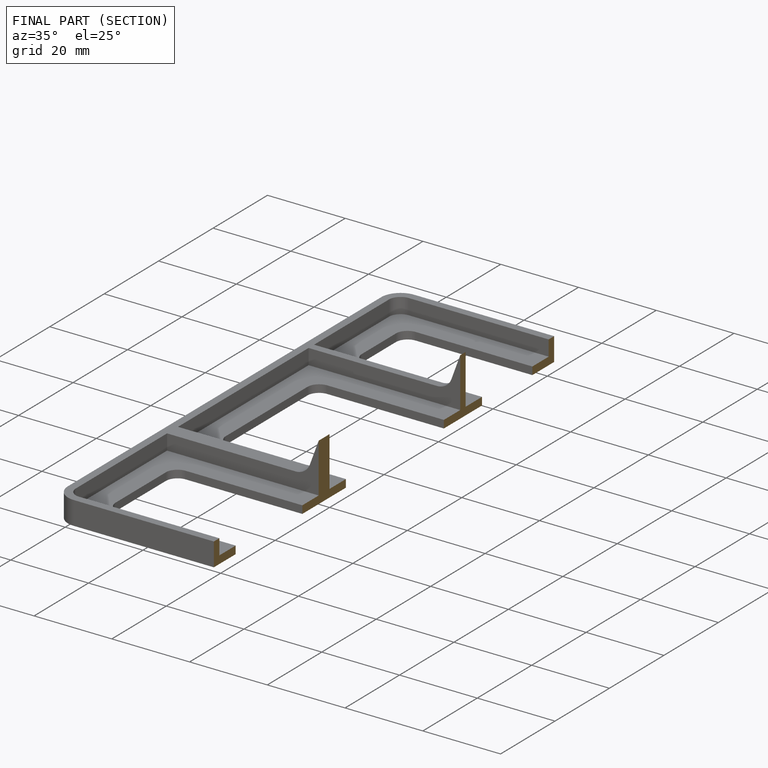
[diagram: finished part — half-section view (interior)]
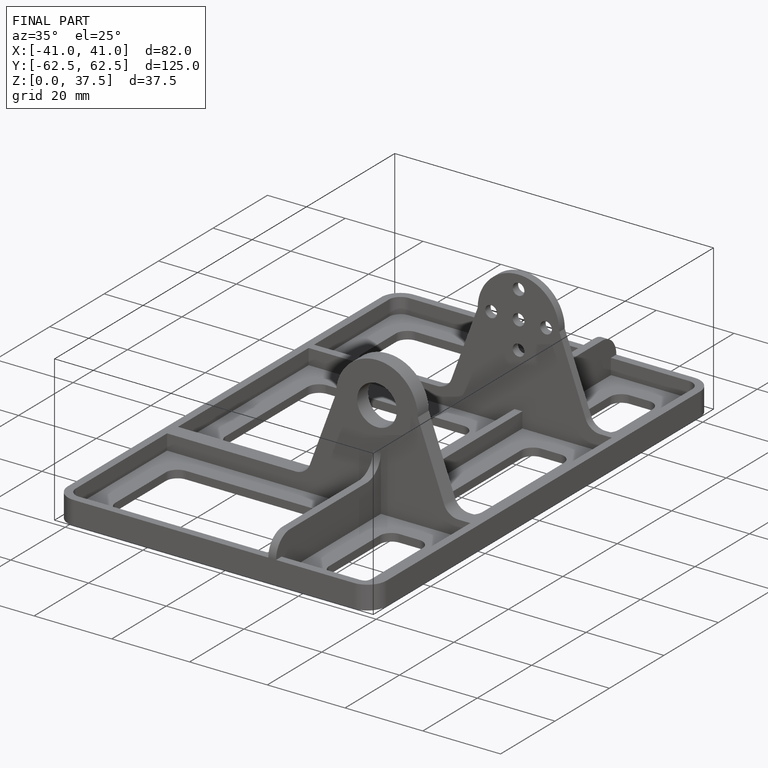
[diagram: finished part — iso view with bounding-box wireframe]
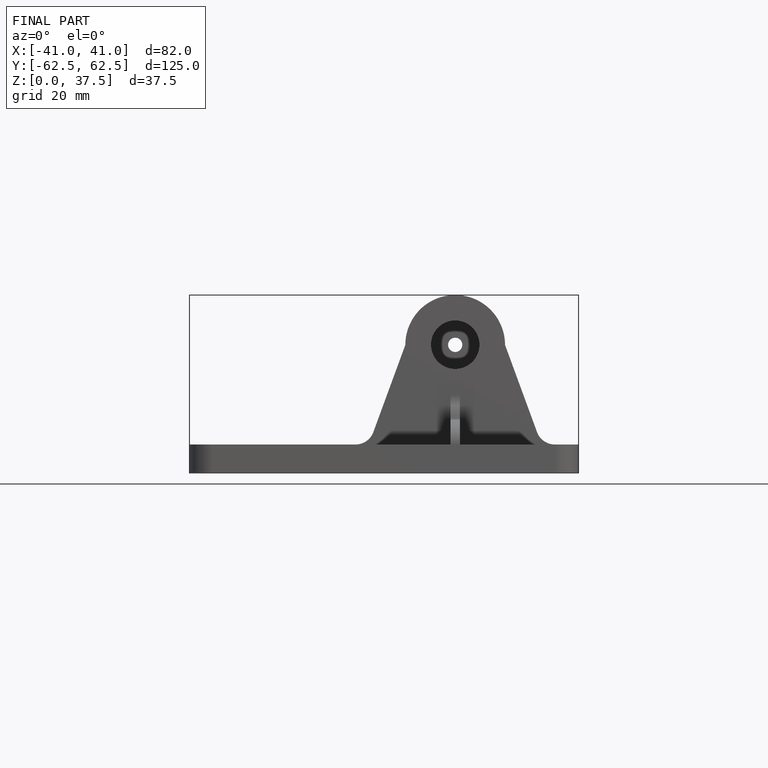
[diagram: finished part — front view with bounding-box wireframe]
